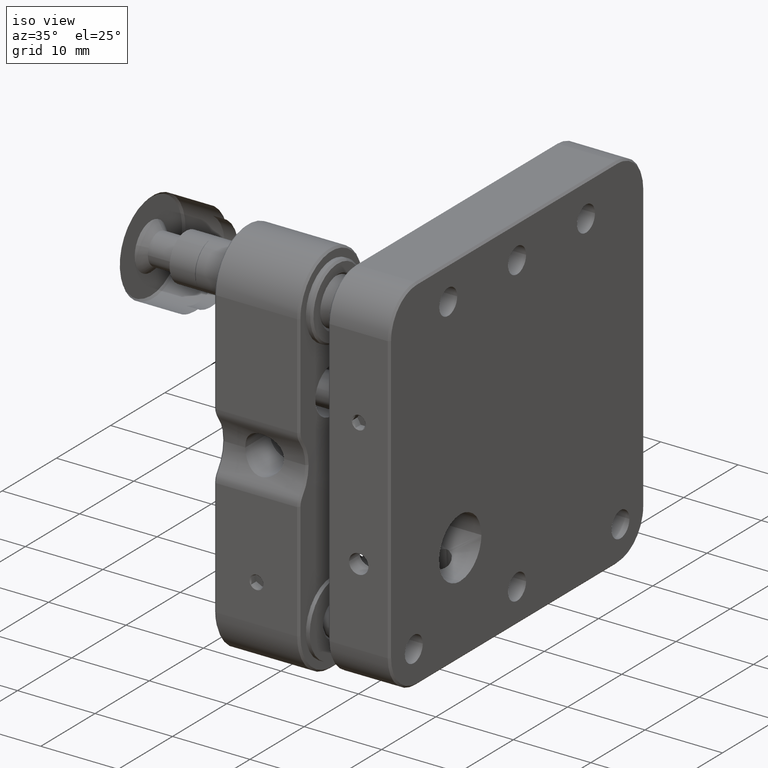
[diagram: clean part render]
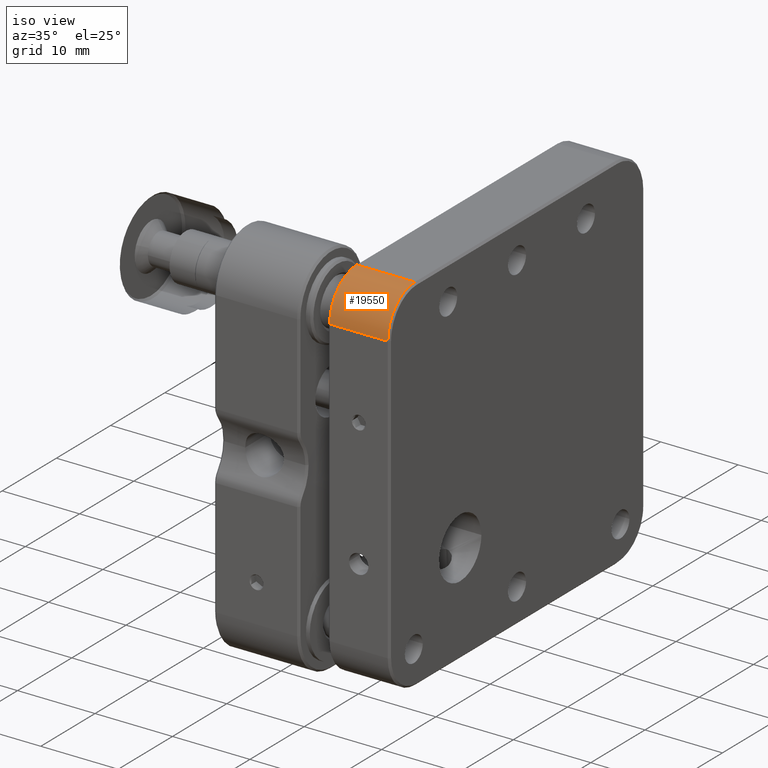
[diagram: same view with one face highlighted and labeled with its STEP entity id]
A machine part, iso view. The second image highlights one B-rep face of the part: STEP entity #19550.
In plain terms, the highlighted face is a freeform B-spline surface patch.
Its self-contained STEP definition (entity closure, byte-faithful):
#434 = CARTESIAN_POINT ( 'NONE',  ( 16.99726781186525315, -18.50000000000000000, 23.50000000000000000 ) ) ;
#1359 = CARTESIAN_POINT ( 'NONE',  ( 7.994867811865270291, -13.50000000000000000, 18.50000000000000000 ) ) ;
#4885 = CARTESIAN_POINT ( 'NONE',  ( 7.994867811865224994, -23.49999999999995737, 13.49999999999998934 ) ) ;
#5257 =( BOUNDED_CURVE ( )  B_SPLINE_CURVE ( 2, ( #42283, #37196, #61675 ),
 .UNSPECIFIED., .F., .T. ) 
 B_SPLINE_CURVE_WITH_KNOTS ( ( 3, 3 ),
 ( 0.000000000000000000, 1.000000000000000000 ),
 .UNSPECIFIED. ) 
 CURVE ( )  GEOMETRIC_REPRESENTATION_ITEM ( )  RATIONAL_B_SPLINE_CURVE ( ( 0.9999999999999978906, 0.7071067811865523467, 0.9999999999999978906 ) ) 
 REPRESENTATION_ITEM ( '' )  );
#6135 = CARTESIAN_POINT ( 'NONE',  ( 7.994867811865224994, -23.49999999999995737, 23.49999999999995737 ) ) ;
#9963 = CARTESIAN_POINT ( 'NONE',  ( 7.994867811865249863, -18.50000000000000000, 23.50000000000000000 ) ) ;
#10588 = CARTESIAN_POINT ( 'NONE',  ( 16.99726781186529934, -13.50000000000000000, 18.50000000000000000 ) ) ;
#11327 = CARTESIAN_POINT ( 'NONE',  ( 8.746067811865261277, -23.50000000000000000, 18.50000000000000000 ) ) ;
#15067 = CARTESIAN_POINT ( 'NONE',  ( 16.99726781186522828, -23.50000000000002842, 13.49999999999998934 ) ) ;
#15691 = CARTESIAN_POINT ( 'NONE',  ( 7.994867811865269402, -13.49999999999998934, 13.49999999999998934 ) ) ;
#15867 = EDGE_CURVE ( 'NONE', #21649, #58596, #48645, .T. ) ;
#16318 = EDGE_LOOP ( 'NONE', ( #47095, #39968, #56917, #50024 ) ) ;
#18902 = CARTESIAN_POINT ( 'NONE',  ( 16.24606781186519910, -18.50000000000000000, 23.50000000000000000 ) ) ;
#19159 = CARTESIAN_POINT ( 'NONE',  ( 8.746067811865261277, -23.50000000000000000, 18.50000000000000000 ) ) ;
#19550 = ADVANCED_FACE ( 'NONE', ( #34161 ), #46604, .T. ) ;
#19836 = CARTESIAN_POINT ( 'NONE',  ( 16.99726781186529934, -13.50000000000000000, 18.50000000000000000 ) ) ;
#20146 = CARTESIAN_POINT ( 'NONE',  ( 7.994867811865269402, -13.49999999999998934, 23.49999999999995737 ) ) ;
#20455 = CARTESIAN_POINT ( 'NONE',  ( 16.99726781186522828, -23.50000000000002842, 23.50000000000002842 ) ) ;
#21649 = VERTEX_POINT ( 'NONE', #11327 ) ;
#23134 = CARTESIAN_POINT ( 'NONE',  ( 8.746067811865247066, -23.49999999999996092, 23.50000000000006750 ) ) ;
#29068 = CARTESIAN_POINT ( 'NONE',  ( 16.99726781186525670, -13.50000000000001599, 13.49999999999998934 ) ) ;
#29705 = CARTESIAN_POINT ( 'NONE',  ( 7.994867811865249863, -18.50000000000000000, 13.50000000000000000 ) ) ;
#30306 = EDGE_CURVE ( 'NONE', #35410, #58596, #54811, .T. ) ;
#30327 = CARTESIAN_POINT ( 'NONE',  ( 16.99726781186525315, -18.50000000000000000, 13.50000000000000000 ) ) ;
#31966 = CARTESIAN_POINT ( 'NONE',  ( 8.746067811865261277, -18.50000000000000000, 23.50000000000000000 ) ) ;
#33543 = CARTESIAN_POINT ( 'NONE',  ( 8.746067811865261277, -18.50000000000000000, 23.50000000000000000 ) ) ;
#34161 = FACE_OUTER_BOUND ( 'NONE', #16318, .T. ) ;
#34783 = CARTESIAN_POINT ( 'NONE',  ( 16.99726781186525315, -23.50000000000000000, 18.50000000000000000 ) ) ;
#35410 = VERTEX_POINT ( 'NONE', #41236 ) ;
#36525 = CARTESIAN_POINT ( 'NONE',  ( 8.746067811865261277, -18.50000000000000000, 23.50000000000000000 ) ) ;
#37196 = CARTESIAN_POINT ( 'NONE',  ( 16.24606781186518489, -23.49999999999990763, 23.49999999999990052 ) ) ;
#39879 = B_SPLINE_CURVE_WITH_KNOTS ( 'NONE', 1,
 ( #19159, #48430 ),
 .UNSPECIFIED., .F., .F.,
 ( 2, 2 ),
 ( 0.000000000000000000, 1.000000000000000000 ),
 .UNSPECIFIED. ) ;
#39968 = ORIENTED_EDGE ( 'NONE', *, *, #55828, .F. ) ;
#41236 = CARTESIAN_POINT ( 'NONE',  ( 16.24606781186519910, -18.50000000000000000, 23.50000000000000000 ) ) ;
#42222 = CARTESIAN_POINT ( 'NONE',  ( 16.24606781186525239, -23.50000000000000000, 18.50000000000000000 ) ) ;
#42283 = CARTESIAN_POINT ( 'NONE',  ( 16.24606781186519910, -18.50000000000000000, 23.50000000000000000 ) ) ;
#44355 = CARTESIAN_POINT ( 'NONE',  ( 16.99726781186525670, -13.50000000000001599, 23.50000000000002842 ) ) ;
#46604 =( BOUNDED_SURFACE ( )  B_SPLINE_SURFACE ( 2, 1, ( 
 ( #54495, #19836 ),
 ( #20146, #44355 ),
 ( #9963, #434 ),
 ( #6135, #20455 ),
 ( #53552, #34783 ),
 ( #4885, #15067 ),
 ( #29705, #30327 ),
 ( #15691, #29068 ),
 ( #1359, #10588 ) ),
 .UNSPECIFIED., .T., .F., .F. ) 
 B_SPLINE_SURFACE_WITH_KNOTS ( ( 3, 2, 2, 2, 3 ),
 ( 2, 2 ),
 ( 0.000000000000000000, 1.570796326794895004, 3.141592653589795336, 4.712388980384689674, 6.283185307179590673 ),
 ( 0.000000000000000000, 9.002399999999999736 ),
 .UNSPECIFIED. ) 
 GEOMETRIC_REPRESENTATION_ITEM ( )  RATIONAL_B_SPLINE_SURFACE ( (
 ( 1.000000000000000000, 1.000000000000000000),
 ( 0.7071067811865480168, 0.7071067811865480168),
 ( 1.000000000000000000, 1.000000000000000000),
 ( 0.7071067811865480168, 0.7071067811865480168),
 ( 1.000000000000000000, 1.000000000000000000),
 ( 0.7071067811865480168, 0.7071067811865480168),
 ( 1.000000000000000000, 1.000000000000000000),
 ( 0.7071067811865480168, 0.7071067811865480168),
 ( 1.000000000000000000, 1.000000000000000000) ) ) 
 REPRESENTATION_ITEM ( '' )  SURFACE ( )  );
#47095 = ORIENTED_EDGE ( 'NONE', *, *, #51877, .T. ) ;
#48430 = CARTESIAN_POINT ( 'NONE',  ( 16.24606781186525239, -23.50000000000000000, 18.50000000000000000 ) ) ;
#48645 =( BOUNDED_CURVE ( )  B_SPLINE_CURVE ( 2, ( #51137, #23134, #36525 ),
 .UNSPECIFIED., .F., .F. ) 
 B_SPLINE_CURVE_WITH_KNOTS ( ( 3, 3 ),
 ( 0.000000000000000000, 1.000000000000000000 ),
 .UNSPECIFIED. ) 
 CURVE ( )  GEOMETRIC_REPRESENTATION_ITEM ( )  RATIONAL_B_SPLINE_CURVE ( ( 0.9999999999999978906, 0.7071067811865480168, 1.000000000000002220 ) ) 
 REPRESENTATION_ITEM ( '' )  );
#50024 = ORIENTED_EDGE ( 'NONE', *, *, #15867, .F. ) ;
#51137 = CARTESIAN_POINT ( 'NONE',  ( 8.746067811865261277, -23.50000000000000000, 18.50000000000000000 ) ) ;
#51877 = EDGE_CURVE ( 'NONE', #21649, #58044, #39879, .T. ) ;
#53552 = CARTESIAN_POINT ( 'NONE',  ( 7.994867811865230323, -23.50000000000000000, 18.50000000000000000 ) ) ;
#54495 = CARTESIAN_POINT ( 'NONE',  ( 7.994867811865270291, -13.50000000000000000, 18.50000000000000000 ) ) ;
#54811 = B_SPLINE_CURVE_WITH_KNOTS ( 'NONE', 1,
 ( #18902, #33543 ),
 .UNSPECIFIED., .F., .F.,
 ( 2, 2 ),
 ( 0.000000000000000000, 1.000000000000000000 ),
 .UNSPECIFIED. ) ;
#55828 = EDGE_CURVE ( 'NONE', #35410, #58044, #5257, .T. ) ;
#56917 = ORIENTED_EDGE ( 'NONE', *, *, #30306, .T. ) ;
#58044 = VERTEX_POINT ( 'NONE', #42222 ) ;
#58596 = VERTEX_POINT ( 'NONE', #31966 ) ;
#61675 = CARTESIAN_POINT ( 'NONE',  ( 16.24606781186525239, -23.50000000000000000, 18.50000000000000000 ) ) ;